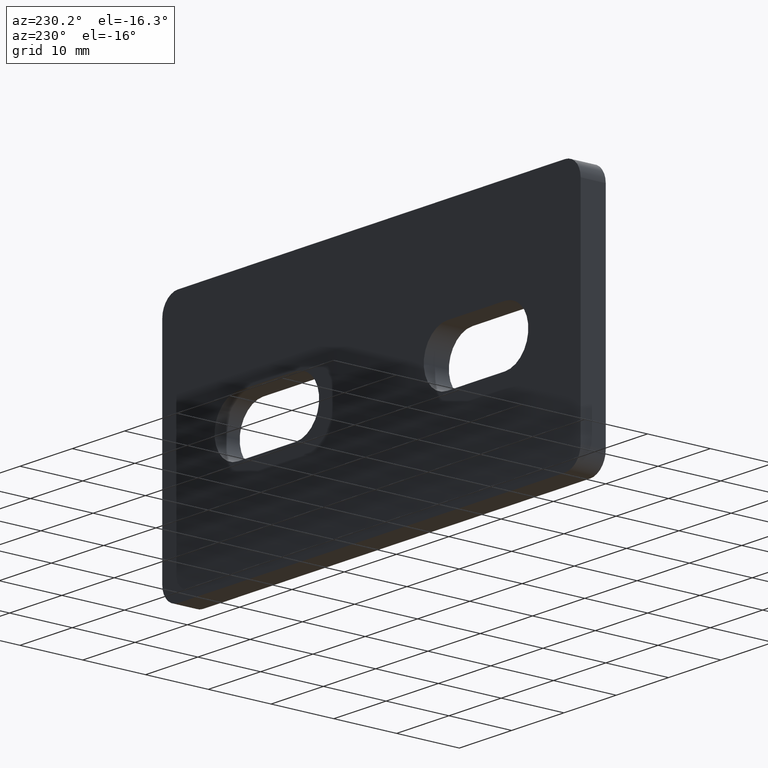
[diagram: clean part render]
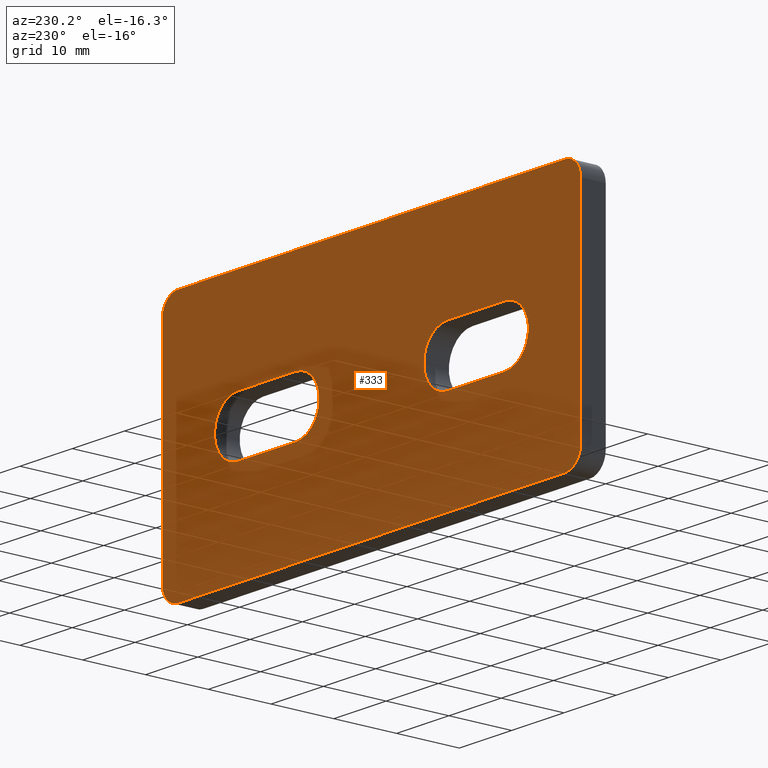
[diagram: same view with one face highlighted and labeled with its STEP entity id]
A machine part, auxiliary view. The second image highlights one B-rep face of the part: STEP entity #333.
In plain terms, the highlighted planar face has unit normal (0, -1, 0).
Its self-contained STEP definition (entity closure, byte-faithful):
#23=FACE_BOUND('',#46,.T.);
#24=FACE_BOUND('',#47,.T.);
#27=FACE_OUTER_BOUND('',#45,.T.);
#45=EDGE_LOOP('',(#227,#228,#229,#230,#231,#232,#233,#234));
#46=EDGE_LOOP('',(#235,#236,#237,#238));
#47=EDGE_LOOP('',(#239,#240,#241,#242));
#67=CIRCLE('',#375,3.);
#68=CIRCLE('',#376,3.);
#69=CIRCLE('',#377,3.);
#70=CIRCLE('',#378,3.);
#71=CIRCLE('',#379,4.5);
#72=CIRCLE('',#380,4.5);
#73=CIRCLE('',#381,4.5);
#74=CIRCLE('',#382,4.5);
#83=LINE('',#514,#115);
#84=LINE('',#518,#116);
#85=LINE('',#522,#117);
#86=LINE('',#526,#118);
#87=LINE('',#532,#119);
#88=LINE('',#535,#120);
#89=LINE('',#540,#121);
#90=LINE('',#543,#122);
#115=VECTOR('',#412,1000.);
#116=VECTOR('',#415,1000.);
#117=VECTOR('',#418,1000.);
#118=VECTOR('',#421,1000.);
#119=VECTOR('',#426,1000.);
#120=VECTOR('',#429,1000.);
#121=VECTOR('',#432,1000.);
#122=VECTOR('',#435,1000.);
#147=VERTEX_POINT('',#512);
#148=VERTEX_POINT('',#513);
#149=VERTEX_POINT('',#515);
#150=VERTEX_POINT('',#517);
#151=VERTEX_POINT('',#519);
#152=VERTEX_POINT('',#521);
#153=VERTEX_POINT('',#523);
#154=VERTEX_POINT('',#525);
#155=VERTEX_POINT('',#528);
#156=VERTEX_POINT('',#529);
#157=VERTEX_POINT('',#531);
#158=VERTEX_POINT('',#533);
#159=VERTEX_POINT('',#536);
#160=VERTEX_POINT('',#537);
#161=VERTEX_POINT('',#539);
#162=VERTEX_POINT('',#541);
#179=EDGE_CURVE('',#147,#148,#83,.T.);
#180=EDGE_CURVE('',#148,#149,#67,.T.);
#181=EDGE_CURVE('',#149,#150,#84,.T.);
#182=EDGE_CURVE('',#150,#151,#68,.T.);
#183=EDGE_CURVE('',#151,#152,#85,.T.);
#184=EDGE_CURVE('',#152,#153,#69,.T.);
#185=EDGE_CURVE('',#153,#154,#86,.T.);
#186=EDGE_CURVE('',#154,#147,#70,.T.);
#187=EDGE_CURVE('',#155,#156,#71,.T.);
#188=EDGE_CURVE('',#157,#155,#87,.T.);
#189=EDGE_CURVE('',#158,#157,#72,.T.);
#190=EDGE_CURVE('',#156,#158,#88,.T.);
#191=EDGE_CURVE('',#159,#160,#73,.T.);
#192=EDGE_CURVE('',#161,#159,#89,.T.);
#193=EDGE_CURVE('',#162,#161,#74,.T.);
#194=EDGE_CURVE('',#160,#162,#90,.T.);
#227=ORIENTED_EDGE('',*,*,#179,.T.);
#228=ORIENTED_EDGE('',*,*,#180,.T.);
#229=ORIENTED_EDGE('',*,*,#181,.T.);
#230=ORIENTED_EDGE('',*,*,#182,.T.);
#231=ORIENTED_EDGE('',*,*,#183,.T.);
#232=ORIENTED_EDGE('',*,*,#184,.T.);
#233=ORIENTED_EDGE('',*,*,#185,.T.);
#234=ORIENTED_EDGE('',*,*,#186,.T.);
#235=ORIENTED_EDGE('',*,*,#187,.F.);
#236=ORIENTED_EDGE('',*,*,#188,.F.);
#237=ORIENTED_EDGE('',*,*,#189,.F.);
#238=ORIENTED_EDGE('',*,*,#190,.F.);
#239=ORIENTED_EDGE('',*,*,#191,.F.);
#240=ORIENTED_EDGE('',*,*,#192,.F.);
#241=ORIENTED_EDGE('',*,*,#193,.F.);
#242=ORIENTED_EDGE('',*,*,#194,.F.);
#323=PLANE('',#374);
#333=ADVANCED_FACE('',(#27,#23,#24),#323,.F.);
#374=AXIS2_PLACEMENT_3D('',#511,#410,#411);
#375=AXIS2_PLACEMENT_3D('',#516,#413,#414);
#376=AXIS2_PLACEMENT_3D('',#520,#416,#417);
#377=AXIS2_PLACEMENT_3D('',#524,#419,#420);
#378=AXIS2_PLACEMENT_3D('',#527,#422,#423);
#379=AXIS2_PLACEMENT_3D('',#530,#424,#425);
#380=AXIS2_PLACEMENT_3D('',#534,#427,#428);
#381=AXIS2_PLACEMENT_3D('',#538,#430,#431);
#382=AXIS2_PLACEMENT_3D('',#542,#433,#434);
#410=DIRECTION('center_axis',(0.,-1.,0.));
#411=DIRECTION('ref_axis',(0.,0.,-1.));
#412=DIRECTION('',(-1.,0.,0.));
#413=DIRECTION('center_axis',(0.,1.,0.));
#414=DIRECTION('ref_axis',(0.,0.,-1.));
#415=DIRECTION('',(0.,0.,1.));
#416=DIRECTION('center_axis',(0.,1.,0.));
#417=DIRECTION('ref_axis',(0.,0.,-1.));
#418=DIRECTION('',(1.,0.,0.));
#419=DIRECTION('center_axis',(0.,1.,0.));
#420=DIRECTION('ref_axis',(0.,0.,-1.));
#421=DIRECTION('',(0.,0.,-1.));
#422=DIRECTION('center_axis',(0.,1.,0.));
#423=DIRECTION('ref_axis',(0.,0.,-1.));
#424=DIRECTION('center_axis',(0.,1.,0.));
#425=DIRECTION('ref_axis',(0.,0.,-1.));
#426=DIRECTION('',(-1.,0.,0.));
#427=DIRECTION('center_axis',(0.,1.,0.));
#428=DIRECTION('ref_axis',(0.,0.,-1.));
#429=DIRECTION('',(1.,0.,0.));
#430=DIRECTION('center_axis',(0.,1.,0.));
#431=DIRECTION('ref_axis',(0.,0.,1.));
#432=DIRECTION('',(1.,0.,0.));
#433=DIRECTION('center_axis',(0.,1.,0.));
#434=DIRECTION('ref_axis',(0.,0.,1.));
#435=DIRECTION('',(-1.,0.,0.));
#511=CARTESIAN_POINT('Origin',(-40.,4.,-20.));
#512=CARTESIAN_POINT('',(37.,4.,-20.));
#513=CARTESIAN_POINT('',(-37.,4.,-20.));
#514=CARTESIAN_POINT('',(-40.,4.,-20.));
#515=CARTESIAN_POINT('',(-40.,4.,-17.));
#516=CARTESIAN_POINT('Origin',(-37.,4.,-17.));
#517=CARTESIAN_POINT('',(-40.,4.,17.));
#518=CARTESIAN_POINT('',(-40.,4.,20.));
#519=CARTESIAN_POINT('',(-37.,4.,20.));
#520=CARTESIAN_POINT('Origin',(-37.,4.,17.));
#521=CARTESIAN_POINT('',(37.,4.,20.));
#522=CARTESIAN_POINT('',(-40.,4.,20.));
#523=CARTESIAN_POINT('',(40.,4.,17.));
#524=CARTESIAN_POINT('Origin',(37.,4.,17.));
#525=CARTESIAN_POINT('',(40.,4.,-17.));
#526=CARTESIAN_POINT('',(40.,4.,20.));
#527=CARTESIAN_POINT('Origin',(37.,4.,-17.));
#528=CARTESIAN_POINT('',(14.5,4.,-4.5));
#529=CARTESIAN_POINT('',(14.5,4.,4.5));
#530=CARTESIAN_POINT('Origin',(14.5,4.,0.));
#531=CARTESIAN_POINT('',(25.5,4.,-4.5));
#532=CARTESIAN_POINT('',(14.5,4.,-4.5));
#533=CARTESIAN_POINT('',(25.5,4.,4.5));
#534=CARTESIAN_POINT('Origin',(25.5,4.,0.));
#535=CARTESIAN_POINT('',(25.5,4.,4.5));
#536=CARTESIAN_POINT('',(-14.5,4.,4.5));
#537=CARTESIAN_POINT('',(-14.5,4.,-4.5));
#538=CARTESIAN_POINT('Origin',(-14.5,4.,0.));
#539=CARTESIAN_POINT('',(-25.5,4.,4.5));
#540=CARTESIAN_POINT('',(-25.5,4.,4.5));
#541=CARTESIAN_POINT('',(-25.5,4.,-4.5));
#542=CARTESIAN_POINT('Origin',(-25.5,4.,0.));
#543=CARTESIAN_POINT('',(-14.5,4.,-4.5));